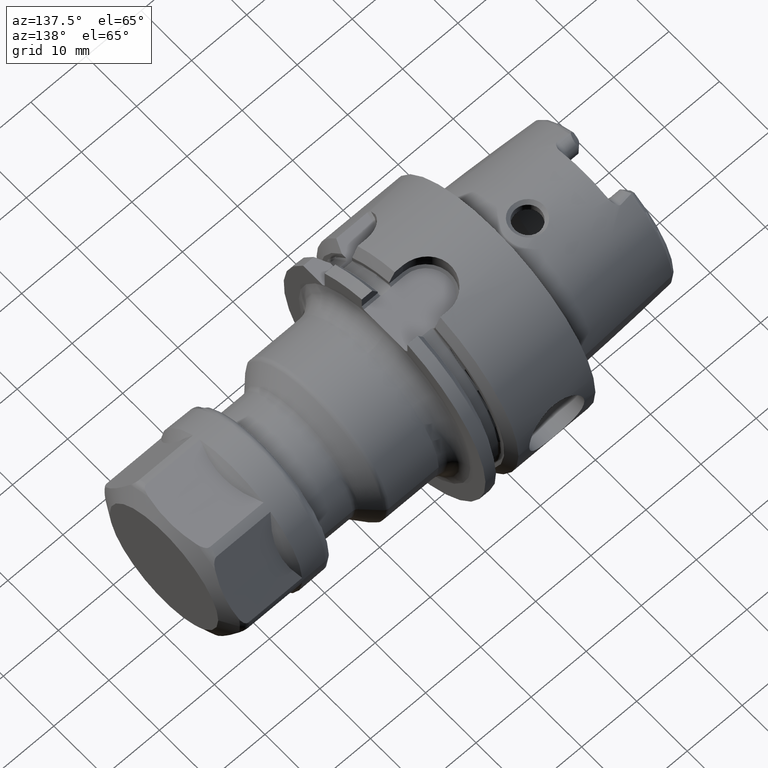
[diagram: clean part render]
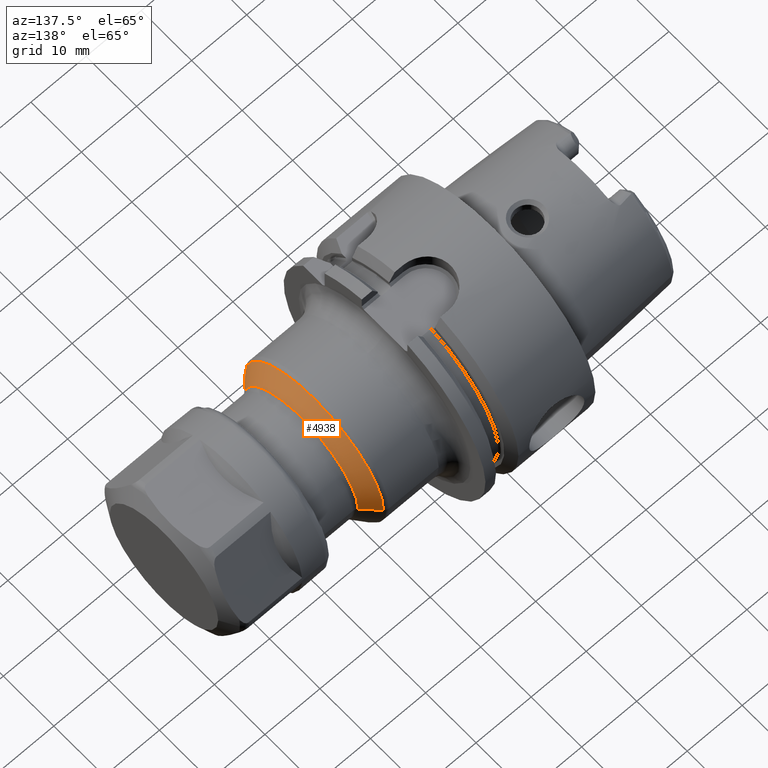
[diagram: same view with one face highlighted and labeled with its STEP entity id]
A machine part, auxiliary view. The second image highlights one B-rep face of the part: STEP entity #4938.
In plain terms, the highlighted conical surface has half-angle 45 deg.
Its self-contained STEP definition (entity closure, byte-faithful):
#1547=DIRECTION('',(-7.071067811865E-1,-7.071067811865E-1,-3.726225857113E-13));
#1548=VECTOR('',#1547,3.414213562373E0);
#1549=CARTESIAN_POINT('',(3.510710678119E1,-1.129289321881E1,
2.976969494688E-12));
#1550=LINE('',#1549,#1548);
#1556=DIRECTION('',(-7.071067811865E-1,7.071067811865E-1,3.705883530930E-13));
#1557=VECTOR('',#1556,3.414213562373E0);
#1558=CARTESIAN_POINT('',(3.510710678119E1,1.129289321881E1,
-2.977249320335E-12));
#1559=LINE('',#1558,#1557);
#1560=CARTESIAN_POINT('',(3.269289321881E1,0.E0,0.E0));
#1561=DIRECTION('',(-1.E0,0.E0,0.E0));
#1562=DIRECTION('',(0.E0,-1.E0,0.E0));
#1563=AXIS2_PLACEMENT_3D('',#1560,#1561,#1562);
#1565=CARTESIAN_POINT('',(3.510710678119E1,0.E0,0.E0));
#1566=DIRECTION('',(1.E0,0.E0,0.E0));
#1567=DIRECTION('',(0.E0,1.E0,0.E0));
#1568=AXIS2_PLACEMENT_3D('',#1565,#1566,#1567);
#3280=CARTESIAN_POINT('',(3.510710678119E1,-1.129289321881E1,0.E0));
#3281=CARTESIAN_POINT('',(3.510710678119E1,1.129289321881E1,0.E0));
#3282=VERTEX_POINT('',#3280);
#3283=VERTEX_POINT('',#3281);
#3292=CARTESIAN_POINT('',(3.269289321881E1,1.370710678119E1,0.E0));
#3293=CARTESIAN_POINT('',(3.269289321881E1,-1.370710678119E1,0.E0));
#3294=VERTEX_POINT('',#3292);
#3295=VERTEX_POINT('',#3293);
#4926=CARTESIAN_POINT('',(3.39E1,0.E0,0.E0));
#4927=DIRECTION('',(-1.E0,0.E0,0.E0));
#4928=DIRECTION('',(0.E0,1.E0,0.E0));
#4929=AXIS2_PLACEMENT_3D('',#4926,#4927,#4928);
#4930=CONICAL_SURFACE('',#4929,1.25E1,4.5E1);
#4931=ORIENTED_EDGE('',*,*,#4878,.T.);
#4932=ORIENTED_EDGE('',*,*,#4921,.F.);
#4934=ORIENTED_EDGE('',*,*,#4933,.T.);
#4935=ORIENTED_EDGE('',*,*,#4917,.T.);
#4936=EDGE_LOOP('',(#4931,#4932,#4934,#4935));
#4937=FACE_OUTER_BOUND('',#4936,.F.);
#4938=ADVANCED_FACE('',(#4937),#4930,.T.);
#1564=CIRCLE('',#1563,1.370710678119E1);
#1569=CIRCLE('',#1568,1.129289321881E1);
#4878=EDGE_CURVE('',#3295,#3294,#1564,.T.);
#4917=EDGE_CURVE('',#3282,#3295,#1550,.T.);
#4921=EDGE_CURVE('',#3283,#3294,#1559,.T.);
#4933=EDGE_CURVE('',#3283,#3282,#1569,.T.);